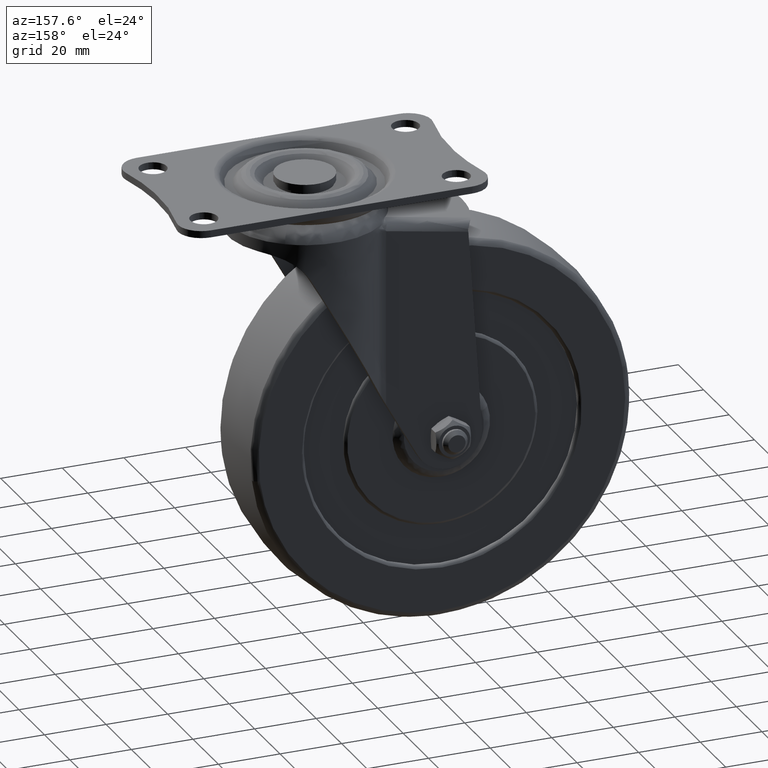
[diagram: clean part render]
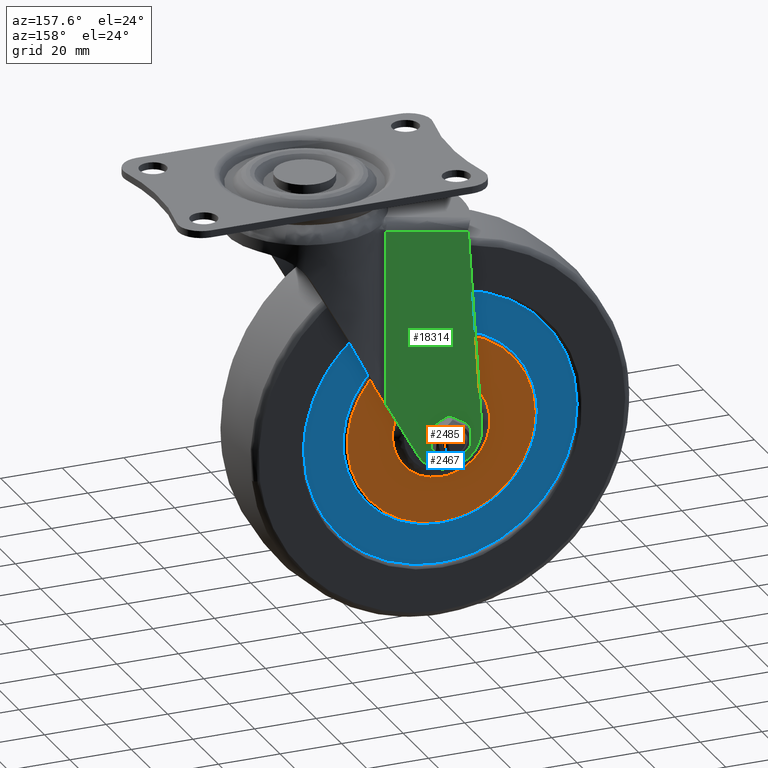
[diagram: same view with three faces highlighted in distinct colors, each labeled with its STEP entity id]
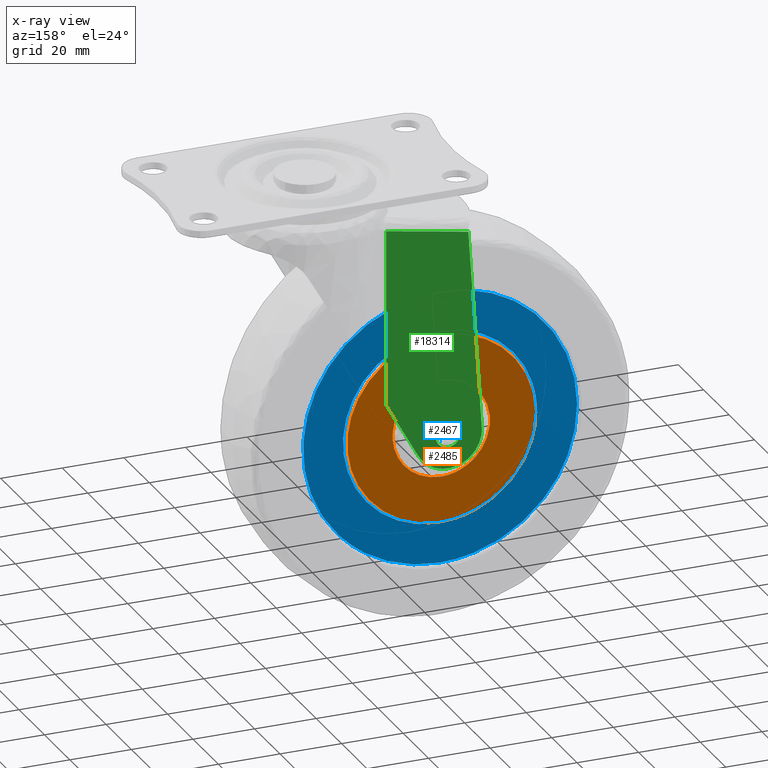
[diagram: x-ray of the same camera — body ghosted, the three highlighted faces saturated]
A machine part, auxiliary view with three faces highlighted in distinct colors.
The next image is the same camera in x-ray (body ghosted, the three faces saturated) — at least one of them is partly hidden behind the body in this view.
Their STEP definitions:

[orange] entity #2485 — the highlighted face is a freeform B-spline surface patch.
#714=CARTESIAN_POINT('',(-10.775710017537680,12.999999999999989,-28.533034879077810));
#715=VERTEX_POINT('',#714);
#729=CARTESIAN_POINT('',(0.0,13.0,-30.500000000000000));
#730=VERTEX_POINT('',#729);
#731=CARTESIAN_POINT('',(0.0,13.0,-30.500000000000000));
#732=CARTESIAN_POINT('',(-5.567376905274638,13.0,-30.500000000000000));
#733=CARTESIAN_POINT('',(-10.775710017537678,12.999999999999993,-28.533034879077803));
#741=(BOUNDED_CURVE()B_SPLINE_CURVE(2,(#731,#732,#733),.UNSPECIFIED.,.F.,.U.)B_SPLINE_CURVE_WITH_KNOTS((3,3),(0.0,0.060000000009452),.UNSPECIFIED.)CURVE()GEOMETRIC_REPRESENTATION_ITEM()RATIONAL_B_SPLINE_CURVE((1.0,0.929705627473698,0.893152553765336))REPRESENTATION_ITEM(''));
#742=EDGE_CURVE('',#730,#715,#741,.T.);
#744=CARTESIAN_POINT('',(0.0,13.0,30.500000000000000));
#745=VERTEX_POINT('',#744);
#746=CARTESIAN_POINT('',(0.0,13.0,30.500000000000000));
#747=CARTESIAN_POINT('',(30.500000000000004,13.0,30.500000000000004));
#748=CARTESIAN_POINT('',(30.500000000000000,13.0,1.855278E-015));
#749=CARTESIAN_POINT('',(30.500000000000004,13.0,-30.500000000000004));
#750=CARTESIAN_POINT('',(0.0,13.0,-30.500000000000000));
#758=(BOUNDED_CURVE()B_SPLINE_CURVE(2,(#746,#747,#748,#749,#750),.UNSPECIFIED.,.F.,.U.)B_SPLINE_CURVE_WITH_KNOTS((3,2,3),(0.500000000000000,0.750000000000000,1.0),.UNSPECIFIED.)CURVE()GEOMETRIC_REPRESENTATION_ITEM()RATIONAL_B_SPLINE_CURVE((1.0,0.707106781186547,1.0,0.707106781186547,1.0))REPRESENTATION_ITEM(''));
#759=EDGE_CURVE('',#745,#730,#758,.T.);
#761=CARTESIAN_POINT('',(-30.500000003521169,13.0,3.546847E-015));
#762=VERTEX_POINT('',#761);
#763=CARTESIAN_POINT('',(-30.500000003521169,13.0,3.546847E-015));
#764=CARTESIAN_POINT('',(-30.500000000000004,13.0,30.500000000000004));
#765=CARTESIAN_POINT('',(0.0,13.0,30.500000000000000));
#773=(BOUNDED_CURVE()B_SPLINE_CURVE(2,(#763,#764,#765),.UNSPECIFIED.,.F.,.U.)B_SPLINE_CURVE_WITH_KNOTS((3,3),(0.250000000000000,0.500000000000000),.UNSPECIFIED.)CURVE()GEOMETRIC_REPRESENTATION_ITEM()RATIONAL_B_SPLINE_CURVE((1.0,0.707106781186547,1.0))REPRESENTATION_ITEM(''));
#774=EDGE_CURVE('',#762,#745,#773,.T.);
#855=CARTESIAN_POINT('',(-10.775710017537678,12.999999999999993,-28.533034879077803));
#856=CARTESIAN_POINT('',(-30.499999999999979,13.0,-21.084011914321191));
#857=CARTESIAN_POINT('',(-30.500000003521176,13.000000000000004,3.546847E-015));
#865=(BOUNDED_CURVE()B_SPLINE_CURVE(2,(#855,#856,#857),.UNSPECIFIED.,.F.,.U.)B_SPLINE_CURVE_WITH_KNOTS((3,3),(0.060000000009452,0.250000000000000),.UNSPECIFIED.)CURVE()GEOMETRIC_REPRESENTATION_ITEM()RATIONAL_B_SPLINE_CURVE((0.893152553765336,0.777401153712850,1.000000000000000))REPRESENTATION_ITEM(''));
#866=EDGE_CURVE('',#715,#762,#865,.T.);
#1887=CARTESIAN_POINT('',(-6.296028338098799,13.000000000579650,-14.522366625408260));
#1888=VERTEX_POINT('',#1887);
#1889=CARTESIAN_POINT('',(0.0,13.0,-15.828427124746300));
#1890=VERTEX_POINT('',#1889);
#1891=CARTESIAN_POINT('',(-6.296028338098799,13.000000000579647,-14.522366625408266));
#1892=CARTESIAN_POINT('',(-3.283480048280190,13.000000000000007,-15.828427124746296));
#1893=CARTESIAN_POINT('',(0.0,13.0,-15.828427124746300));
#1901=(BOUNDED_CURVE()B_SPLINE_CURVE(2,(#1891,#1892,#1893),.UNSPECIFIED.,.F.,.U.)B_SPLINE_CURVE_WITH_KNOTS((3,3),(0.932461457329624,1.0),.UNSPECIFIED.)CURVE()GEOMETRIC_REPRESENTATION_ITEM()RATIONAL_B_SPLINE_CURVE((0.884499963963679,0.920873675373215,1.0))REPRESENTATION_ITEM(''));
#1902=EDGE_CURVE('',#1888,#1890,#1901,.T.);
#1966=CARTESIAN_POINT('',(-14.858687043713021,13.000001893871760,5.455135505463302));
#1967=VERTEX_POINT('',#1966);
#1981=CARTESIAN_POINT('',(0.0,13.0,15.828427124746300));
#1982=VERTEX_POINT('',#1981);
#1983=CARTESIAN_POINT('',(0.0,13.0,15.828427124746300));
#1984=CARTESIAN_POINT('',(-11.050295001697831,13.000000946935883,15.828427009360244));
#1985=CARTESIAN_POINT('',(-14.858687043713029,13.000001893871755,5.455135505463303));
#1993=(BOUNDED_CURVE()B_SPLINE_CURVE(2,(#1983,#1984,#1985),.UNSPECIFIED.,.F.,.U.)B_SPLINE_CURVE_WITH_KNOTS((3,3),(0.500000000000000,0.691460559502260),.UNSPECIFIED.)CURVE()GEOMETRIC_REPRESENTATION_ITEM()RATIONAL_B_SPLINE_CURVE((1.0,0.775690001806234,0.894952145661503))REPRESENTATION_ITEM(''));
#1994=EDGE_CURVE('',#1982,#1967,#1993,.T.);
#1996=CARTESIAN_POINT('',(0.0,13.0,-15.828427124746300));
#1997=CARTESIAN_POINT('',(15.828427124746304,13.000000000000002,-15.828427124746291));
#1998=CARTESIAN_POINT('',(15.828427124746300,13.0,1.855278E-015));
#1999=CARTESIAN_POINT('',(15.828427124746304,13.000000000000002,15.828427124746304));
#2000=CARTESIAN_POINT('',(0.0,13.0,15.828427124746300));
#2008=(BOUNDED_CURVE()B_SPLINE_CURVE(2,(#1996,#1997,#1998,#1999,#2000),.UNSPECIFIED.,.F.,.U.)B_SPLINE_CURVE_WITH_KNOTS((3,2,3),(0.0,0.250000000000000,0.500000000000000),.UNSPECIFIED.)CURVE()GEOMETRIC_REPRESENTATION_ITEM()RATIONAL_B_SPLINE_CURVE((1.0,0.707106781186548,1.0,0.707106781186548,1.0))REPRESENTATION_ITEM(''));
#2009=EDGE_CURVE('',#1890,#1982,#2008,.T.);
#2031=CARTESIAN_POINT('',(-14.858687043713029,13.000001893871755,5.455135505463303));
#2032=CARTESIAN_POINT('',(-15.828426555310550,13.000001715673628,2.813761170213101));
#2033=CARTESIAN_POINT('',(-15.828426630076260,13.000001490396009,-0.000000181565982));
#2034=CARTESIAN_POINT('',(-15.828426906145328,13.000000658568359,-10.389689543654461));
#2035=CARTESIAN_POINT('',(-6.296028338098799,13.000000000579647,-14.522366625408266));
#2043=(BOUNDED_CURVE()B_SPLINE_CURVE(2,(#2031,#2032,#2033,#2034,#2035),.UNSPECIFIED.,.F.,.U.)B_SPLINE_CURVE_WITH_KNOTS((3,2,3),(0.691460559502260,0.750000000000000,0.932461457329624),.UNSPECIFIED.)CURVE()GEOMETRIC_REPRESENTATION_ITEM()RATIONAL_B_SPLINE_CURVE((0.894952145661503,0.931416779380313,1.0,0.786233105813333,0.884499963963679))REPRESENTATION_ITEM(''));
#2044=EDGE_CURVE('',#1967,#1888,#2043,.T.);
#2468=CARTESIAN_POINT('',(-33.546949885467207,13.0,33.546949881770168));
#2469=CARTESIAN_POINT('',(-33.546949885467207,13.0,-33.546951517917662));
#2470=CARTESIAN_POINT('',(33.546951518093309,13.0,33.546949881770168));
#2471=CARTESIAN_POINT('',(33.546951518093309,13.0,-33.546951517917662));
#2472=B_SPLINE_SURFACE_WITH_KNOTS('',1,1,((#2468,#2470),(#2469,#2471)),.UNSPECIFIED.,.F.,.F.,.U.,(2,2),(2,2),(0.0,67.093901399687837),(0.0,67.093901403560523),.UNSPECIFIED.);
#2473=ORIENTED_EDGE('',*,*,#742,.T.);
#2474=ORIENTED_EDGE('',*,*,#866,.T.);
#2475=ORIENTED_EDGE('',*,*,#774,.T.);
#2476=ORIENTED_EDGE('',*,*,#759,.T.);
#2477=EDGE_LOOP('',(#2473,#2474,#2475,#2476));
#2478=FACE_OUTER_BOUND('',#2477,.T.);
#2479=ORIENTED_EDGE('',*,*,#2009,.T.);
#2480=ORIENTED_EDGE('',*,*,#1994,.T.);
#2481=ORIENTED_EDGE('',*,*,#2044,.T.);
#2482=ORIENTED_EDGE('',*,*,#1902,.T.);
#2483=EDGE_LOOP('',(#2479,#2480,#2481,#2482));
#2484=FACE_BOUND('',#2483,.T.);
#2485=ADVANCED_FACE('',(#2478,#2484),#2472,.F.);

[blue] entity #2467 — the highlighted face is a freeform B-spline surface patch.
#79=CARTESIAN_POINT('',(-33.650934688435207,12.0,-29.118114543951268));
#80=VERTEX_POINT('',#79);
#86=CARTESIAN_POINT('',(0.0,12.0,-44.500000000000000));
#87=VERTEX_POINT('',#86);
#88=CARTESIAN_POINT('',(-33.650934688435221,11.999999999999996,-29.118114543951265));
#89=CARTESIAN_POINT('',(-20.341007294873293,12.000000000000002,-44.500000000000000));
#90=CARTESIAN_POINT('',(0.0,12.0,-44.500000000000000));
#98=(BOUNDED_CURVE()B_SPLINE_CURVE(2,(#88,#89,#90),.UNSPECIFIED.,.F.,.U.)B_SPLINE_CURVE_WITH_KNOTS((3,3),(0.864117878321308,1.0),.UNSPECIFIED.)CURVE()GEOMETRIC_REPRESENTATION_ITEM()RATIONAL_B_SPLINE_CURVE((0.854663297235646,0.840804192009307,1.0))REPRESENTATION_ITEM(''));
#99=EDGE_CURVE('',#80,#87,#98,.T.);
#101=CARTESIAN_POINT('',(32.808842872041538,12.0,-30.063762728535561));
#102=VERTEX_POINT('',#101);
#103=CARTESIAN_POINT('',(0.0,12.0,-44.500000000000000));
#104=CARTESIAN_POINT('',(19.580469847280245,11.999999999999998,-44.500000000000000));
#105=CARTESIAN_POINT('',(32.808842872041581,11.999999999999998,-30.063762728535593));
#113=(BOUNDED_CURVE()B_SPLINE_CURVE(2,(#103,#104,#105),.UNSPECIFIED.,.F.,.U.)B_SPLINE_CURVE_WITH_KNOTS((3,3),(0.0,0.131584797865409),.UNSPECIFIED.)CURVE()GEOMETRIC_REPRESENTATION_ITEM()RATIONAL_B_SPLINE_CURVE((1.0,0.845838820025131,0.853959781695751))REPRESENTATION_ITEM(''));
#114=EDGE_CURVE('',#87,#102,#113,.T.);
#224=CARTESIAN_POINT('',(0.0,12.0,44.500000000000000));
#225=VERTEX_POINT('',#224);
#226=CARTESIAN_POINT('',(32.808842872041581,11.999999999999998,-30.063762728535593));
#227=CARTESIAN_POINT('',(44.500000000000000,12.000000000000002,-17.305102388276165));
#228=CARTESIAN_POINT('',(44.500000000000000,12.0,1.855278E-015));
#229=CARTESIAN_POINT('',(44.500000000000000,12.0,44.500000000000000));
#230=CARTESIAN_POINT('',(0.0,12.0,44.500000000000000));
#238=(BOUNDED_CURVE()B_SPLINE_CURVE(2,(#226,#227,#228,#229,#230),.UNSPECIFIED.,.F.,.U.)B_SPLINE_CURVE_WITH_KNOTS((3,2,3),(0.131584797865409,0.250000000000000,0.500000000000000),.UNSPECIFIED.)CURVE()GEOMETRIC_REPRESENTATION_ITEM()RATIONAL_B_SPLINE_CURVE((0.853959781695751,0.861267961161416,1.0,0.707106781186547,1.0))REPRESENTATION_ITEM(''));
#239=EDGE_CURVE('',#102,#225,#238,.T.);
#241=CARTESIAN_POINT('',(0.0,12.0,44.500000000000000));
#242=CARTESIAN_POINT('',(-44.500000000000000,12.0,44.500000000000000));
#243=CARTESIAN_POINT('',(-44.500000000000000,12.0,1.855278E-015));
#244=CARTESIAN_POINT('',(-44.500000000000000,11.999999999999996,-16.580173878069072));
#245=CARTESIAN_POINT('',(-33.650934688435207,11.999999999999998,-29.118114543951268));
#253=(BOUNDED_CURVE()B_SPLINE_CURVE(2,(#241,#242,#243,#244,#245),.UNSPECIFIED.,.F.,.U.)B_SPLINE_CURVE_WITH_KNOTS((3,2,3),(0.500000000000000,0.750000000000000,0.864117878321308),.UNSPECIFIED.)CURVE()GEOMETRIC_REPRESENTATION_ITEM()RATIONAL_B_SPLINE_CURVE((1.0,0.707106781186547,1.0,0.866302589177240,0.854663297235646))REPRESENTATION_ITEM(''));
#254=EDGE_CURVE('',#225,#80,#253,.T.);
#697=CARTESIAN_POINT('',(-11.129011949850060,12.000000001537940,-29.468544127935711));
#698=VERTEX_POINT('',#697);
#699=CARTESIAN_POINT('',(0.0,12.0,-31.500000000000000));
#700=VERTEX_POINT('',#699);
#701=CARTESIAN_POINT('',(-11.129011949850064,12.000000001537943,-29.468544127935708));
#702=CARTESIAN_POINT('',(-5.749913852077129,11.999999999999998,-31.500000000000000));
#703=CARTESIAN_POINT('',(0.0,12.0,-31.500000000000000));
#711=(BOUNDED_CURVE()B_SPLINE_CURVE(2,(#701,#702,#703),.UNSPECIFIED.,.F.,.U.)B_SPLINE_CURVE_WITH_KNOTS((3,3),(0.939999999999390,1.0),.UNSPECIFIED.)CURVE()GEOMETRIC_REPRESENTATION_ITEM()RATIONAL_B_SPLINE_CURVE((0.893152553776109,0.929705627484057,1.0))REPRESENTATION_ITEM(''));
#712=EDGE_CURVE('',#698,#700,#711,.T.);
#776=CARTESIAN_POINT('',(-31.499999999999989,12.000000001102361,3.546573E-015));
#777=VERTEX_POINT('',#776);
#791=CARTESIAN_POINT('',(0.0,12.0,31.500000000000000));
#792=VERTEX_POINT('',#791);
#793=CARTESIAN_POINT('',(0.0,12.0,31.500000000000000));
#794=CARTESIAN_POINT('',(-31.499999999999851,12.0,31.500000000000007));
#795=CARTESIAN_POINT('',(-31.499999999999993,12.000000001102364,3.546573E-015));
#803=(BOUNDED_CURVE()B_SPLINE_CURVE(2,(#793,#794,#795),.UNSPECIFIED.,.F.,.U.)B_SPLINE_CURVE_WITH_KNOTS((3,3),(0.500000000000000,0.749999999999999),.UNSPECIFIED.)CURVE()GEOMETRIC_REPRESENTATION_ITEM()RATIONAL_B_SPLINE_CURVE((1.0,0.707106781186548,0.999999999999998))REPRESENTATION_ITEM(''));
#804=EDGE_CURVE('',#792,#777,#803,.T.);
#806=CARTESIAN_POINT('',(0.0,12.0,-31.500000000000000));
#807=CARTESIAN_POINT('',(31.500000000000007,12.0,-31.500000000000007));
#808=CARTESIAN_POINT('',(31.500000000000000,12.0,1.855278E-015));
#809=CARTESIAN_POINT('',(31.500000000000007,12.0,31.500000000000007));
#810=CARTESIAN_POINT('',(0.0,12.0,31.500000000000000));
#818=(BOUNDED_CURVE()B_SPLINE_CURVE(2,(#806,#807,#808,#809,#810),.UNSPECIFIED.,.F.,.U.)B_SPLINE_CURVE_WITH_KNOTS((3,2,3),(0.0,0.250000000000000,0.500000000000000),.UNSPECIFIED.)CURVE()GEOMETRIC_REPRESENTATION_ITEM()RATIONAL_B_SPLINE_CURVE((1.0,0.707106781186547,1.0,0.707106781186547,1.0))REPRESENTATION_ITEM(''));
#819=EDGE_CURVE('',#700,#792,#818,.T.);
#841=CARTESIAN_POINT('',(-31.499999999999989,12.000000001102361,3.546573E-015));
#842=CARTESIAN_POINT('',(-31.499999999999993,12.0,-21.775290994782893));
#843=CARTESIAN_POINT('',(-11.129011949850064,12.000000001537945,-29.468544127935708));
#851=(BOUNDED_CURVE()B_SPLINE_CURVE(2,(#841,#842,#843),.UNSPECIFIED.,.F.,.U.)B_SPLINE_CURVE_WITH_KNOTS((3,3),(0.750000000000000,0.939999999999391),.UNSPECIFIED.)CURVE()GEOMETRIC_REPRESENTATION_ITEM()RATIONAL_B_SPLINE_CURVE((1.0,0.777401153702490,0.893152553776110))REPRESENTATION_ITEM(''));
#852=EDGE_CURVE('',#777,#698,#851,.T.);
#2450=CARTESIAN_POINT('',(-48.926193360467138,12.0,48.945549827500727));
#2451=CARTESIAN_POINT('',(-48.926193360467138,12.0,-48.945552214666762));
#2452=CARTESIAN_POINT('',(48.924912248034651,12.0,48.945549827500727));
#2453=CARTESIAN_POINT('',(48.924912248034651,12.0,-48.945552214666762));
#2454=B_SPLINE_SURFACE_WITH_KNOTS('',1,1,((#2450,#2452),(#2451,#2453)),.UNSPECIFIED.,.F.,.F.,.U.,(2,2),(2,2),(0.0,97.891102042167489),(0.0,97.851105608501797),.UNSPECIFIED.);
#2455=ORIENTED_EDGE('',*,*,#99,.F.);
#2456=ORIENTED_EDGE('',*,*,#254,.F.);
#2457=ORIENTED_EDGE('',*,*,#239,.F.);
#2458=ORIENTED_EDGE('',*,*,#114,.F.);
#2459=EDGE_LOOP('',(#2455,#2456,#2457,#2458));
#2460=FACE_OUTER_BOUND('',#2459,.T.);
#2461=ORIENTED_EDGE('',*,*,#819,.T.);
#2462=ORIENTED_EDGE('',*,*,#804,.T.);
#2463=ORIENTED_EDGE('',*,*,#852,.T.);
#2464=ORIENTED_EDGE('',*,*,#712,.T.);
#2465=EDGE_LOOP('',(#2461,#2462,#2463,#2464));
#2466=FACE_BOUND('',#2465,.T.);
#2467=ADVANCED_FACE('',(#2460,#2466),#2454,.F.);

[green] entity #18314 — the highlighted face is a freeform B-spline surface patch.
#14207=CARTESIAN_POINT('',(-3.987669334881294,18.299989999999990,-0.313836383562161));
#14208=VERTEX_POINT('',#14207);
#14214=CARTESIAN_POINT('',(0.0,18.299990000000001,4.0));
#14215=VERTEX_POINT('',#14214);
#14216=CARTESIAN_POINT('',(-3.987669334881294,18.299989999999994,-0.313836383562161));
#14217=CARTESIAN_POINT('',(-4.000000000000001,18.299990000000001,-0.157160428684478));
#14218=CARTESIAN_POINT('',(-4.0,18.299990000000001,0.0));
#14219=CARTESIAN_POINT('',(-4.000000000000000,18.299990000000001,4.000000000000000));
#14220=CARTESIAN_POINT('',(0.0,18.299990000000001,4.0));
#14228=(BOUNDED_CURVE()B_SPLINE_CURVE(2,(#14216,#14217,#14218,#14219,#14220),.UNSPECIFIED.,.F.,.U.)B_SPLINE_CURVE_WITH_KNOTS((3,2,3),(0.736331300576815,0.750000000000000,1.0),.UNSPECIFIED.)CURVE()GEOMETRIC_REPRESENTATION_ITEM()RATIONAL_B_SPLINE_CURVE((0.969723356055047,0.983986122515799,1.0,0.707106781186548,1.0))REPRESENTATION_ITEM(''));
#14229=EDGE_CURVE('',#14208,#14215,#14228,.T.);
#14231=CARTESIAN_POINT('',(3.987669334881294,18.299990000000001,0.313836383562161));
#14232=VERTEX_POINT('',#14231);
#14233=CARTESIAN_POINT('',(0.0,18.299990000000001,4.0));
#14234=CARTESIAN_POINT('',(3.697561965422227,18.299990000000001,4.000000000000001));
#14235=CARTESIAN_POINT('',(3.987669334881294,18.299990000000005,0.313836383562161));
#14243=(BOUNDED_CURVE()B_SPLINE_CURVE(2,(#14233,#14234,#14235),.UNSPECIFIED.,.F.,.U.)B_SPLINE_CURVE_WITH_KNOTS((3,3),(0.0,0.236331300576815),.UNSPECIFIED.)CURVE()GEOMETRIC_REPRESENTATION_ITEM()RATIONAL_B_SPLINE_CURVE((1.0,0.723120658670749,0.969723356055047))REPRESENTATION_ITEM(''));
#14244=EDGE_CURVE('',#14215,#14232,#14243,.T.);
#14290=CARTESIAN_POINT('',(0.0,18.299990000000001,-4.0));
#14291=VERTEX_POINT('',#14290);
#14292=CARTESIAN_POINT('',(3.987669334881294,18.299989999999998,0.313836383562161));
#14293=CARTESIAN_POINT('',(4.0,18.299990000000001,0.157160428684479));
#14294=CARTESIAN_POINT('',(4.0,18.299990000000001,0.0));
#14295=CARTESIAN_POINT('',(4.000000000000000,18.299990000000001,-4.000000000000000));
#14296=CARTESIAN_POINT('',(0.0,18.299990000000001,-4.0));
#14304=(BOUNDED_CURVE()B_SPLINE_CURVE(2,(#14292,#14293,#14294,#14295,#14296),.UNSPECIFIED.,.F.,.U.)B_SPLINE_CURVE_WITH_KNOTS((3,2,3),(0.236331300576815,0.250000000000000,0.500000000000000),.UNSPECIFIED.)CURVE()GEOMETRIC_REPRESENTATION_ITEM()RATIONAL_B_SPLINE_CURVE((0.969723356055047,0.983986122515799,1.0,0.707106781186548,1.0))REPRESENTATION_ITEM(''));
#14305=EDGE_CURVE('',#14232,#14291,#14304,.T.);
#14307=CARTESIAN_POINT('',(0.0,18.299990000000001,-4.0));
#14308=CARTESIAN_POINT('',(-3.697561965422241,18.299990000000008,-4.000000000000001));
#14309=CARTESIAN_POINT('',(-3.987669334881293,18.299990000000001,-0.313836383562161));
#14317=(BOUNDED_CURVE()B_SPLINE_CURVE(2,(#14307,#14308,#14309),.UNSPECIFIED.,.F.,.U.)B_SPLINE_CURVE_WITH_KNOTS((3,3),(0.500000000000000,0.736331300576815),.UNSPECIFIED.)CURVE()GEOMETRIC_REPRESENTATION_ITEM()RATIONAL_B_SPLINE_CURVE((1.0,0.723120658670748,0.969723356055049))REPRESENTATION_ITEM(''));
#14318=EDGE_CURVE('',#14291,#14208,#14317,.T.);
#16216=CARTESIAN_POINT('',(20.102633358060100,18.299990000000001,70.409649439843790));
#16217=VERTEX_POINT('',#16216);
#16242=CARTESIAN_POINT('',(20.102633358060000,18.299990000000001,13.331849330000979));
#16243=VERTEX_POINT('',#16242);
#16252=CARTESIAN_POINT('',(20.102633358060100,18.299990000000001,70.409649439843790));
#16253=CARTESIAN_POINT('',(20.102633358060000,18.299990000000001,13.331849330000979));
#16254=QUASI_UNIFORM_CURVE('',1,(#16252,#16253),.UNSPECIFIED.,.F.,.U.);
#16255=EDGE_CURVE('',#16217,#16243,#16254,.T.);
#17407=CARTESIAN_POINT('',(-6.599504122434451,18.299990000000001,65.701342289655898));
#17408=VERTEX_POINT('',#17407);
#17409=CARTESIAN_POINT('',(-6.599504122434451,18.299990000000001,65.701342289655898));
#17410=CARTESIAN_POINT('',(20.102633358060100,18.299990000000001,70.409649439843790));
#17411=QUASI_UNIFORM_CURVE('',1,(#17409,#17410),.UNSPECIFIED.,.F.,.U.);
#17412=EDGE_CURVE('',#17408,#16217,#17411,.T.);
#17969=CARTESIAN_POINT('',(9.591182999999999,18.299990000000001,-5.386123999999881));
#17970=VERTEX_POINT('',#17969);
#17976=CARTESIAN_POINT('',(9.591182999999999,18.299990000000001,-5.386123999999881));
#17977=CARTESIAN_POINT('',(20.102633358060000,18.299990000000001,13.331849330000979));
#17978=QUASI_UNIFORM_CURVE('',1,(#17976,#17977),.UNSPECIFIED.,.F.,.U.);
#17979=EDGE_CURVE('',#17970,#16243,#17978,.T.);
#18144=CARTESIAN_POINT('',(-10.975132623484621,18.299990000000001,0.739232546349898));
#18145=VERTEX_POINT('',#18144);
#18151=CARTESIAN_POINT('',(9.591183000000003,18.299990000000001,-5.386123999999885));
#18152=CARTESIAN_POINT('',(5.286267950915184,18.299989999999998,-13.051981929386550));
#18153=CARTESIAN_POINT('',(-3.139859606060598,18.299990000000001,-10.542391172519871));
#18154=CARTESIAN_POINT('',(-11.565987163036388,18.299989999999998,-8.032800415653187));
#18155=CARTESIAN_POINT('',(-10.975132623484621,18.299990000000001,0.739232546349890));
#18163=(BOUNDED_CURVE()B_SPLINE_CURVE(2,(#18151,#18152,#18153,#18154,#18155),.UNSPECIFIED.,.F.,.U.)B_SPLINE_CURVE_WITH_KNOTS((3,2,3),(0.0,0.500000000000000,1.0),.UNSPECIFIED.)CURVE()GEOMETRIC_REPRESENTATION_ITEM()RATIONAL_B_SPLINE_CURVE((1.0,0.781149641739967,1.0,0.781149641739967,1.0))REPRESENTATION_ITEM(''));
#18164=EDGE_CURVE('',#17970,#18145,#18163,.T.);
#18292=CARTESIAN_POINT('',(-12.550616684692100,18.299990000000001,-15.064201089158610));
#18293=CARTESIAN_POINT('',(-12.550616684692100,18.299990000000001,74.475958281909897));
#18294=CARTESIAN_POINT('',(21.656067530820678,18.299990000000001,-15.064201089158610));
#18295=CARTESIAN_POINT('',(21.656067530820678,18.299990000000001,74.475958281909897));
#18296=B_SPLINE_SURFACE_WITH_KNOTS('',1,1,((#18292,#18294),(#18293,#18295)),.UNSPECIFIED.,.F.,.F.,.U.,(2,2),(2,2),(0.0,89.540159371068512),(0.0,34.206684215512780),.UNSPECIFIED.);
#18297=ORIENTED_EDGE('',*,*,#17412,.T.);
#18298=ORIENTED_EDGE('',*,*,#16255,.T.);
#18299=ORIENTED_EDGE('',*,*,#17979,.F.);
#18300=ORIENTED_EDGE('',*,*,#18164,.T.);
#18301=CARTESIAN_POINT('',(-6.599504122434451,18.299990000000001,65.701342289655898));
#18302=CARTESIAN_POINT('',(-10.975132623484621,18.299990000000001,0.739232546349898));
#18303=QUASI_UNIFORM_CURVE('',1,(#18301,#18302),.UNSPECIFIED.,.F.,.U.);
#18304=EDGE_CURVE('',#17408,#18145,#18303,.T.);
#18305=ORIENTED_EDGE('',*,*,#18304,.F.);
#18306=EDGE_LOOP('',(#18297,#18298,#18299,#18300,#18305));
#18307=FACE_OUTER_BOUND('',#18306,.T.);
#18308=ORIENTED_EDGE('',*,*,#14318,.F.);
#18309=ORIENTED_EDGE('',*,*,#14305,.F.);
#18310=ORIENTED_EDGE('',*,*,#14244,.F.);
#18311=ORIENTED_EDGE('',*,*,#14229,.F.);
#18312=EDGE_LOOP('',(#18308,#18309,#18310,#18311));
#18313=FACE_BOUND('',#18312,.T.);
#18314=ADVANCED_FACE('',(#18307,#18313),#18296,.T.);